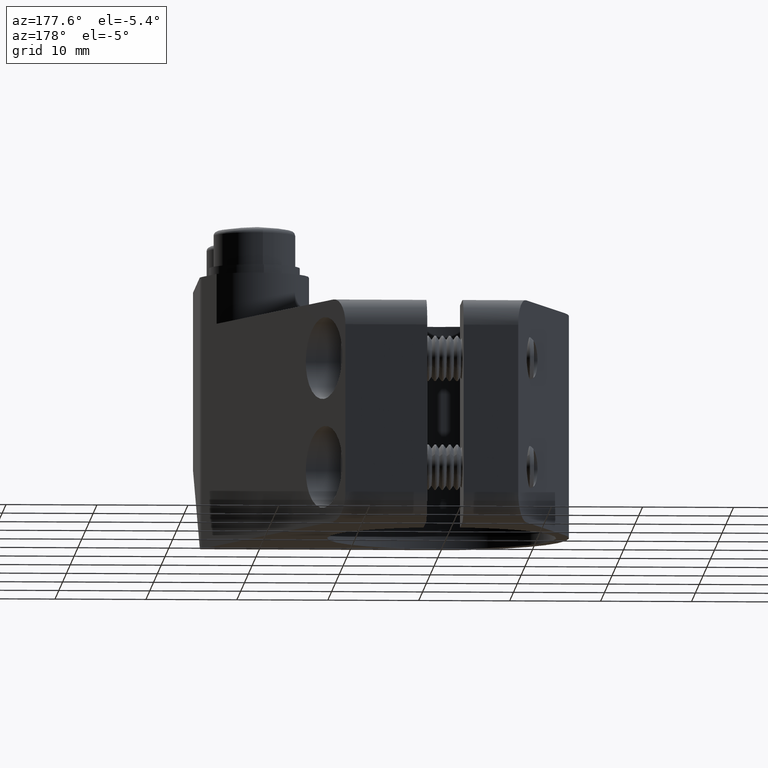
[diagram: clean part render]
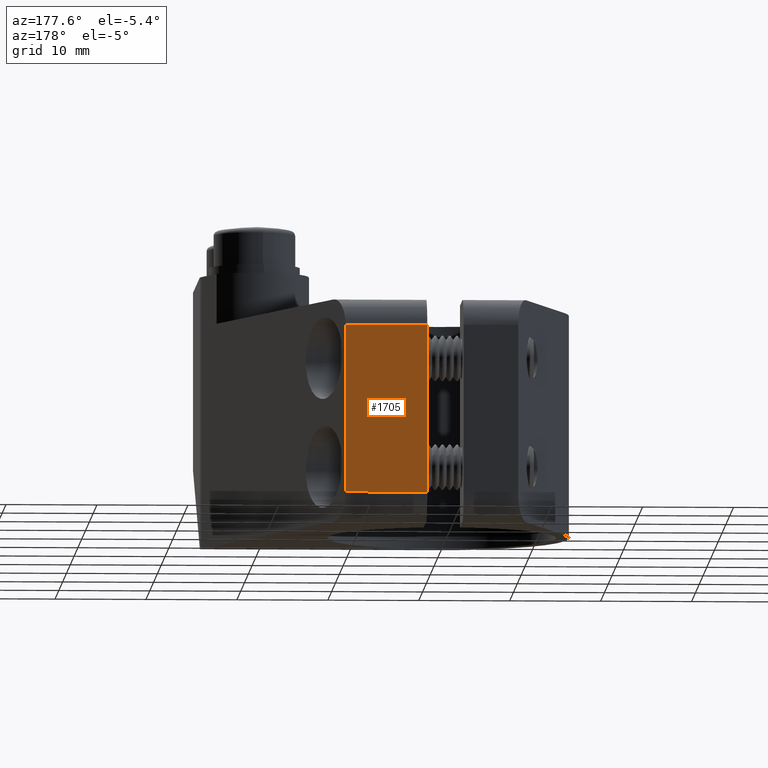
[diagram: same view with one face highlighted and labeled with its STEP entity id]
A machine part, auxiliary view. The second image highlights one B-rep face of the part: STEP entity #1705.
In plain terms, the highlighted planar face has unit normal (-0, -1, 0).
Its self-contained STEP definition (entity closure, byte-faithful):
#18 = ORIENTED_EDGE ( 'NONE', *, *, #9968, .T. ) ;
#156 = VECTOR ( 'NONE', #1506, 1000.000000000000000 ) ;
#697 = LINE ( 'NONE', #3686, #4078 ) ;
#1381 = CARTESIAN_POINT ( 'NONE',  ( 2.499999999999998700, 22.00000000000000000, 9.250000000000001800 ) ) ;
#1398 = EDGE_CURVE ( 'NONE', #13981, #14600, #7382, .T. ) ;
#1506 = DIRECTION ( 'NONE',  ( -0.0000000000000000000, -0.0000000000000000000, -1.000000000000000000 ) ) ;
#1705 = ADVANCED_FACE ( 'NONE', ( #2305 ), #5377, .F. ) ;
#2289 = VERTEX_POINT ( 'NONE', #14069 ) ;
#2305 = FACE_OUTER_BOUND ( 'NONE', #10161, .T. ) ;
#3686 = CARTESIAN_POINT ( 'NONE',  ( 11.49999999999999600, 21.99999999999999600, -9.250000000000001800 ) ) ;
#3723 = DIRECTION ( 'NONE',  ( -3.854941057726239100E-016, -1.000000000000000000, 0.0000000000000000000 ) ) ;
#4078 = VECTOR ( 'NONE', #12714, 1000.000000000000000 ) ;
#5377 = PLANE ( 'NONE',  #15975 ) ;
#5721 = VERTEX_POINT ( 'NONE', #13731 ) ;
#7382 = LINE ( 'NONE', #13147, #10529 ) ;
#7643 = ORIENTED_EDGE ( 'NONE', *, *, #18449, .T. ) ;
#7665 = DIRECTION ( 'NONE',  ( 1.000000000000000000, -3.854941057726239100E-016, -0.0000000000000000000 ) ) ;
#8767 = CARTESIAN_POINT ( 'NONE',  ( 2.499999999999998700, 22.00000000000000000, -9.250000000000001800 ) ) ;
#8811 = EDGE_CURVE ( 'NONE', #2289, #14600, #697, .T. ) ;
#8828 = CARTESIAN_POINT ( 'NONE',  ( 11.49999999999999600, 21.99999999999999600, 9.250000000000001800 ) ) ;
#9958 = DIRECTION ( 'NONE',  ( 1.000000000000000000, -3.854941057726239100E-016, 0.0000000000000000000 ) ) ;
#9968 = EDGE_CURVE ( 'NONE', #13981, #5721, #19012, .T. ) ;
#10161 = EDGE_LOOP ( 'NONE', ( #12570, #18, #7643, #12939 ) ) ;
#10529 = VECTOR ( 'NONE', #19363, 1000.000000000000000 ) ;
#12570 = ORIENTED_EDGE ( 'NONE', *, *, #1398, .F. ) ;
#12714 = DIRECTION ( 'NONE',  ( -1.000000000000000000, 3.854941057726239100E-016, 0.0000000000000000000 ) ) ;
#12939 = ORIENTED_EDGE ( 'NONE', *, *, #8811, .T. ) ;
#13147 = CARTESIAN_POINT ( 'NONE',  ( 2.499999999999998700, 22.00000000000000000, 12.25000000000000000 ) ) ;
#13474 = LINE ( 'NONE', #19988, #156 ) ;
#13731 = CARTESIAN_POINT ( 'NONE',  ( 11.49999999999999600, 21.99999999999999600, 9.250000000000001800 ) ) ;
#13981 = VERTEX_POINT ( 'NONE', #1381 ) ;
#14069 = CARTESIAN_POINT ( 'NONE',  ( 11.49999999999999600, 21.99999999999999600, -9.250000000000001800 ) ) ;
#14600 = VERTEX_POINT ( 'NONE', #8767 ) ;
#15975 = AXIS2_PLACEMENT_3D ( 'NONE', #17556, #3723, #9958 ) ;
#16571 = VECTOR ( 'NONE', #7665, 1000.000000000000000 ) ;
#17556 = CARTESIAN_POINT ( 'NONE',  ( 11.49999999999999600, 21.99999999999999600, 12.25000000000000000 ) ) ;
#18449 = EDGE_CURVE ( 'NONE', #5721, #2289, #13474, .T. ) ;
#19012 = LINE ( 'NONE', #8828, #16571 ) ;
#19363 = DIRECTION ( 'NONE',  ( -0.0000000000000000000, -0.0000000000000000000, -1.000000000000000000 ) ) ;
#19988 = CARTESIAN_POINT ( 'NONE',  ( 11.49999999999999600, 21.99999999999999600, 12.25000000000000000 ) ) ;